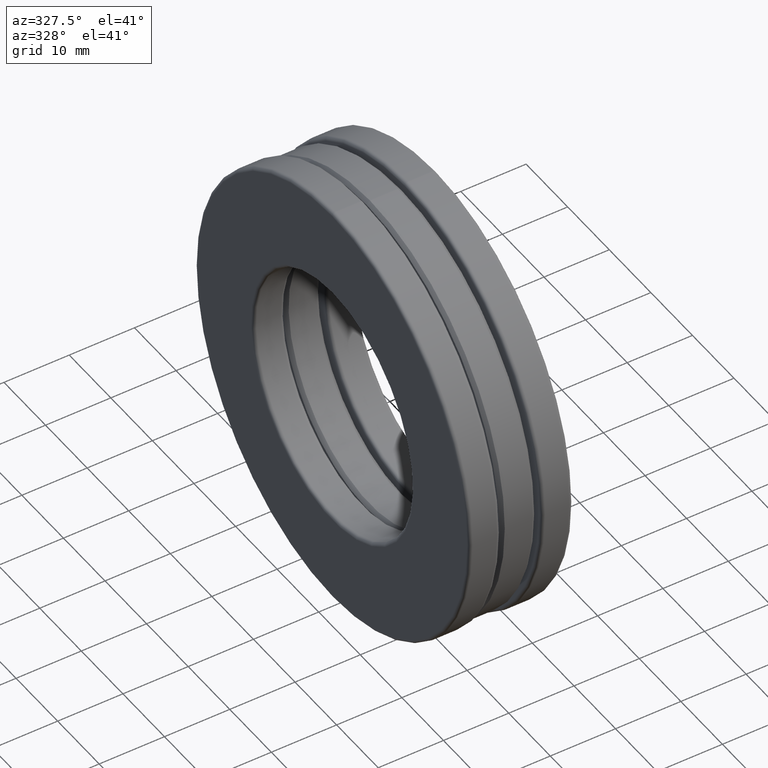
[diagram: clean part render]
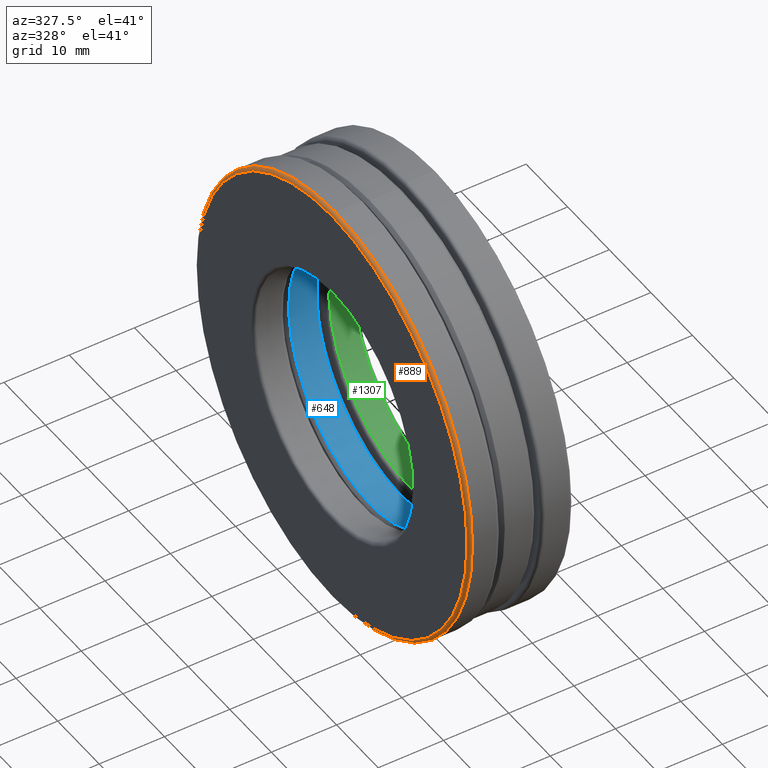
[diagram: same view with three faces highlighted in distinct colors, each labeled with its STEP entity id]
A machine part, auxiliary view with three faces highlighted in distinct colors.
Their STEP definitions:

[orange] entity #889 — the highlighted toroidal blend (fillet) surface has major radius 32.4326 mm and minor (blend) radius 0.508 mm.
#26 = VERTEX_POINT ( 'NONE', #517 ) ;
#58 = AXIS2_PLACEMENT_3D ( 'NONE', #1247, #577, #472 ) ;
#61 = DIRECTION ( 'NONE',  ( 0.0000000000000000000, 0.0000000000000000000, 1.000000000000000000 ) ) ;
#134 = EDGE_LOOP ( 'NONE', ( #1201 ) ) ;
#164 = CIRCLE ( 'NONE', #333, 1.296875000000000000 ) ;
#181 = DIRECTION ( 'NONE',  ( -1.000000000000000000, -0.0000000000000000000, -0.0000000000000000000 ) ) ;
#188 = CARTESIAN_POINT ( 'NONE',  ( -0.2925000000000000900, 0.0000000000000000000, 0.0000000000000000000 ) ) ;
#333 = AXIS2_PLACEMENT_3D ( 'NONE', #188, #181, #61 ) ;
#338 = DIRECTION ( 'NONE',  ( 0.0000000000000000000, 0.0000000000000000000, 1.000000000000000000 ) ) ;
#416 = CIRCLE ( 'NONE', #497, 1.276875000000000000 ) ;
#472 = DIRECTION ( 'NONE',  ( 0.0000000000000000000, 0.0000000000000000000, 1.000000000000000000 ) ) ;
#497 = AXIS2_PLACEMENT_3D ( 'NONE', #1469, #1118, #338 ) ;
#513 = EDGE_CURVE ( 'NONE', #1087, #1087, #164, .T. ) ;
#517 = CARTESIAN_POINT ( 'NONE',  ( -0.3125000000000000000, 0.0000000000000000000, 1.276875000000000000 ) ) ;
#562 = ORIENTED_EDGE ( 'NONE', *, *, #1018, .F. ) ;
#577 = DIRECTION ( 'NONE',  ( -1.000000000000000000, -0.0000000000000000000, -0.0000000000000000000 ) ) ;
#702 = FACE_OUTER_BOUND ( 'NONE', #1186, .T. ) ;
#721 = CARTESIAN_POINT ( 'NONE',  ( -0.2925000000000000900, 0.0000000000000000000, 1.296875000000000000 ) ) ;
#730 = FACE_OUTER_BOUND ( 'NONE', #134, .T. ) ;
#889 = ADVANCED_FACE ( 'NONE', ( #702, #730 ), #1388, .T. ) ;
#1018 = EDGE_CURVE ( 'NONE', #26, #26, #416, .T. ) ;
#1087 = VERTEX_POINT ( 'NONE', #721 ) ;
#1118 = DIRECTION ( 'NONE',  ( -1.000000000000000000, -0.0000000000000000000, -0.0000000000000000000 ) ) ;
#1186 = EDGE_LOOP ( 'NONE', ( #562 ) ) ;
#1201 = ORIENTED_EDGE ( 'NONE', *, *, #513, .T. ) ;
#1247 = CARTESIAN_POINT ( 'NONE',  ( -0.2925000000000000900, 0.0000000000000000000, 0.0000000000000000000 ) ) ;
#1388 = TOROIDAL_SURFACE ( 'NONE', #58, 1.276875000000000000, 0.01999999999999999000 ) ;
#1469 = CARTESIAN_POINT ( 'NONE',  ( -0.3125000000000000000, 0.0000000000000000000, 0.0000000000000000000 ) ) ;

[blue] entity #648 — the highlighted cylindrical surface (bore or boss wall) has radius 19.558 mm, axis along (-1, -0, -0).
#16 = CIRCLE ( 'NONE', #418, 0.7700000000000001300 ) ;
#136 = DIRECTION ( 'NONE',  ( 0.0000000000000000000, 0.0000000000000000000, 1.000000000000000000 ) ) ;
#139 = CYLINDRICAL_SURFACE ( 'NONE', #282, 0.7700000000000001300 ) ;
#208 = ORIENTED_EDGE ( 'NONE', *, *, #664, .F. ) ;
#212 = DIRECTION ( 'NONE',  ( -1.000000000000000000, -0.0000000000000000000, -0.0000000000000000000 ) ) ;
#256 = CARTESIAN_POINT ( 'NONE',  ( 0.0000000000000000000, 0.0000000000000000000, 0.0000000000000000000 ) ) ;
#282 = AXIS2_PLACEMENT_3D ( 'NONE', #256, #1157, #578 ) ;
#418 = AXIS2_PLACEMENT_3D ( 'NONE', #454, #783, #136 ) ;
#454 = CARTESIAN_POINT ( 'NONE',  ( -0.08499999999999997800, 0.0000000000000000000, 0.0000000000000000000 ) ) ;
#504 = FACE_OUTER_BOUND ( 'NONE', #526, .T. ) ;
#526 = EDGE_LOOP ( 'NONE', ( #1202 ) ) ;
#536 = CARTESIAN_POINT ( 'NONE',  ( 0.08500000000000004800, 0.0000000000000000000, 0.0000000000000000000 ) ) ;
#541 = FACE_OUTER_BOUND ( 'NONE', #1256, .T. ) ;
#578 = DIRECTION ( 'NONE',  ( 0.0000000000000000000, 0.0000000000000000000, 1.000000000000000000 ) ) ;
#629 = VERTEX_POINT ( 'NONE', #1420 ) ;
#648 = ADVANCED_FACE ( 'NONE', ( #541, #504 ), #139, .F. ) ;
#664 = EDGE_CURVE ( 'NONE', #1394, #1394, #1297, .T. ) ;
#732 = CARTESIAN_POINT ( 'NONE',  ( 0.08500000000000004800, 0.0000000000000000000, 0.7700000000000001300 ) ) ;
#763 = EDGE_CURVE ( 'NONE', #629, #629, #16, .T. ) ;
#783 = DIRECTION ( 'NONE',  ( -1.000000000000000000, -0.0000000000000000000, -0.0000000000000000000 ) ) ;
#1157 = DIRECTION ( 'NONE',  ( -1.000000000000000000, -0.0000000000000000000, -0.0000000000000000000 ) ) ;
#1202 = ORIENTED_EDGE ( 'NONE', *, *, #763, .T. ) ;
#1213 = DIRECTION ( 'NONE',  ( 0.0000000000000000000, 0.0000000000000000000, 1.000000000000000000 ) ) ;
#1256 = EDGE_LOOP ( 'NONE', ( #208 ) ) ;
#1297 = CIRCLE ( 'NONE', #1330, 0.7700000000000001300 ) ;
#1330 = AXIS2_PLACEMENT_3D ( 'NONE', #536, #212, #1213 ) ;
#1394 = VERTEX_POINT ( 'NONE', #732 ) ;
#1420 = CARTESIAN_POINT ( 'NONE',  ( -0.08499999999999997800, 0.0000000000000000000, 0.7700000000000001300 ) ) ;

[green] entity #1307 — the highlighted cylindrical surface (bore or boss wall) has radius 19.05 mm, axis along (-1, -0, -0).
#91 = EDGE_LOOP ( 'NONE', ( #512 ) ) ;
#132 = DIRECTION ( 'NONE',  ( -1.000000000000000000, -0.0000000000000000000, -0.0000000000000000000 ) ) ;
#161 = CARTESIAN_POINT ( 'NONE',  ( 0.2925000000000000400, 0.0000000000000000000, 0.0000000000000000000 ) ) ;
#191 = FACE_OUTER_BOUND ( 'NONE', #601, .T. ) ;
#251 = DIRECTION ( 'NONE',  ( -1.000000000000000000, -0.0000000000000000000, -0.0000000000000000000 ) ) ;
#309 = AXIS2_PLACEMENT_3D ( 'NONE', #790, #132, #1029 ) ;
#403 = DIRECTION ( 'NONE',  ( -1.000000000000000000, -0.0000000000000000000, -0.0000000000000000000 ) ) ;
#483 = DIRECTION ( 'NONE',  ( 0.0000000000000000000, 0.0000000000000000000, 1.000000000000000000 ) ) ;
#512 = ORIENTED_EDGE ( 'NONE', *, *, #611, .T. ) ;
#546 = CIRCLE ( 'NONE', #1462, 0.7500000000000001100 ) ;
#601 = EDGE_LOOP ( 'NONE', ( #1418 ) ) ;
#611 = EDGE_CURVE ( 'NONE', #797, #797, #911, .T. ) ;
#620 = CARTESIAN_POINT ( 'NONE',  ( 0.1450000000000000500, 0.0000000000000000000, 0.7500000000000001100 ) ) ;
#790 = CARTESIAN_POINT ( 'NONE',  ( 0.1450000000000000500, 0.0000000000000000000, 0.0000000000000000000 ) ) ;
#797 = VERTEX_POINT ( 'NONE', #620 ) ;
#841 = FACE_OUTER_BOUND ( 'NONE', #91, .T. ) ;
#911 = CIRCLE ( 'NONE', #309, 0.7500000000000001100 ) ;
#914 = CARTESIAN_POINT ( 'NONE',  ( 0.0000000000000000000, 0.0000000000000000000, 0.0000000000000000000 ) ) ;
#946 = AXIS2_PLACEMENT_3D ( 'NONE', #914, #251, #483 ) ;
#949 = CYLINDRICAL_SURFACE ( 'NONE', #946, 0.7500000000000001100 ) ;
#956 = DIRECTION ( 'NONE',  ( 0.0000000000000000000, 0.0000000000000000000, 1.000000000000000000 ) ) ;
#1029 = DIRECTION ( 'NONE',  ( 0.0000000000000000000, 0.0000000000000000000, 1.000000000000000000 ) ) ;
#1060 = CARTESIAN_POINT ( 'NONE',  ( 0.2925000000000000400, 0.0000000000000000000, 0.7500000000000001100 ) ) ;
#1244 = VERTEX_POINT ( 'NONE', #1060 ) ;
#1307 = ADVANCED_FACE ( 'NONE', ( #841, #191 ), #949, .F. ) ;
#1402 = EDGE_CURVE ( 'NONE', #1244, #1244, #546, .T. ) ;
#1418 = ORIENTED_EDGE ( 'NONE', *, *, #1402, .F. ) ;
#1462 = AXIS2_PLACEMENT_3D ( 'NONE', #161, #403, #956 ) ;